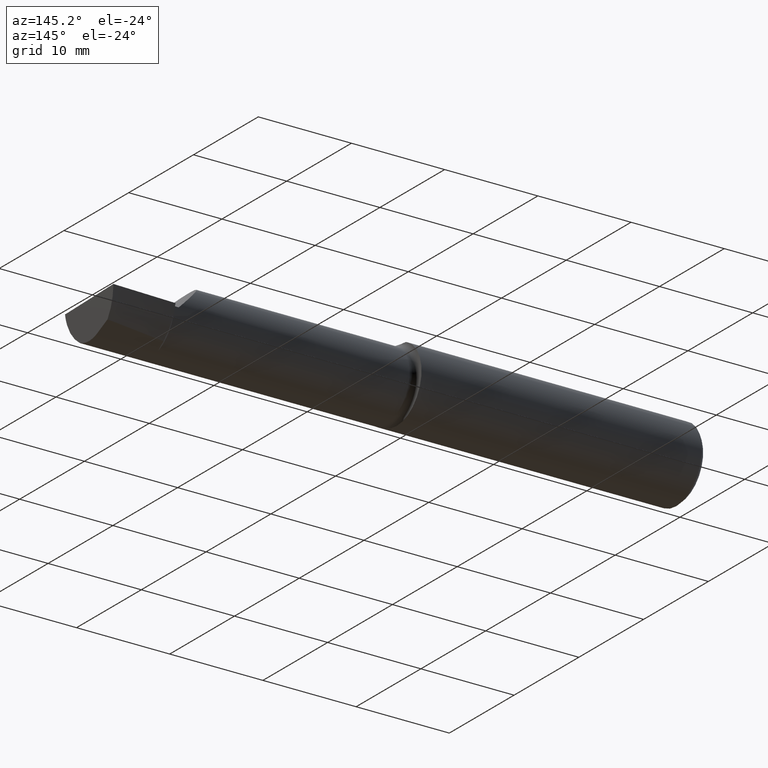
[diagram: clean part render]
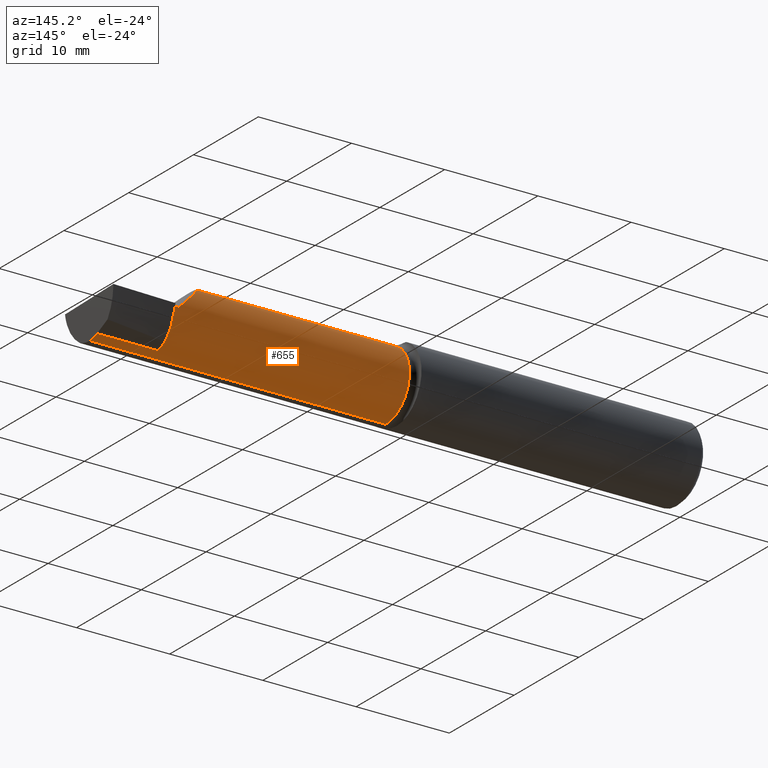
[diagram: same view with one face highlighted and labeled with its STEP entity id]
A machine part, auxiliary view. The second image highlights one B-rep face of the part: STEP entity #655.
In plain terms, the highlighted cylindrical surface (partial cylindrical patch) has radius 3.6551 mm, axis along (-1, -0, -0).
Its self-contained STEP definition (entity closure, byte-faithful):
#9 = CIRCLE ( 'NONE', #172, 0.1439000000000000001 ) ;
#21 = LINE ( 'NONE', #418, #461 ) ;
#22 = AXIS2_PLACEMENT_3D ( 'NONE', #25, #34, #599 ) ;
#25 = CARTESIAN_POINT ( 'NONE',  ( 0.000000000000000000, -0.02500000000000000486, 0.000000000000000000 ) ) ;
#34 = DIRECTION ( 'NONE',  ( -1.000000000000000000, -0.000000000000000000, -0.000000000000000000 ) ) ;
#68 = CARTESIAN_POINT ( 'NONE',  ( 2.476130359589496788, -0.02499999999999999098, -0.1439000000000000556 ) ) ;
#80 = DIRECTION ( 'NONE',  ( -1.000000000000000000, 0.000000000000000000, 0.000000000000000000 ) ) ;
#112 = EDGE_CURVE ( 'NONE', #188, #493, #699, .T. ) ;
#142 = EDGE_CURVE ( 'NONE', #388, #282, #258, .T. ) ;
#157 = VECTOR ( 'NONE', #479, 39.37007874015748143 ) ;
#168 =( BOUNDED_CURVE ( )  B_SPLINE_CURVE ( 3, ( #555, #398, #175, #612 ),
 .UNSPECIFIED., .F., .T. ) 
 B_SPLINE_CURVE_WITH_KNOTS ( ( 4, 4 ),
 ( 0.2749416817183363282, 0.6240075321171965061 ),
 .UNSPECIFIED. ) 
 CURVE ( )  GEOMETRIC_REPRESENTATION_ITEM ( )  RATIONAL_B_SPLINE_CURVE ( ( 1.000000000000000000, 0.9898718353414723836, 0.9898718353414723836, 1.000000000000000000 ) ) 
 REPRESENTATION_ITEM ( '' )  );
#170 = VERTEX_POINT ( 'NONE', #442 ) ;
#172 = AXIS2_PLACEMENT_3D ( 'NONE', #365, #466, #477 ) ;
#175 = CARTESIAN_POINT ( 'NONE',  ( 2.477647009804057276, 0.008402520951239019972, -0.1409776580835795379 ) ) ;
#184 = ORIENTED_EDGE ( 'NONE', *, *, #480, .F. ) ;
#188 = VERTEX_POINT ( 'NONE', #283 ) ;
#204 = CYLINDRICAL_SURFACE ( 'NONE', #22, 0.1439000000000000556 ) ;
#206 = DIRECTION ( 'NONE',  ( -1.000000000000000000, -0.000000000000000000, -0.000000000000000000 ) ) ;
#238 = EDGE_LOOP ( 'NONE', ( #591, #309, #184, #507, #340, #665, #372, #400 ) ) ;
#257 = CARTESIAN_POINT ( 'NONE',  ( 2.500000000000000000, 0.02421669862456291358, -0.1352217681310924902 ) ) ;
#258 = LINE ( 'NONE', #483, #157 ) ;
#265 = VECTOR ( 'NONE', #645, 39.37007874015748143 ) ;
#271 = CARTESIAN_POINT ( 'NONE',  ( 2.199999999999999289, 0.1189000000000000612, 3.826894855694925850E-18 ) ) ;
#274 = EDGE_CURVE ( 'NONE', #613, #517, #168, .T. ) ;
#282 = VERTEX_POINT ( 'NONE', #344 ) ;
#283 = CARTESIAN_POINT ( 'NONE',  ( 2.056100000000000705, -0.02500000000000000486, 0.1439000000000000556 ) ) ;
#303 = CARTESIAN_POINT ( 'NONE',  ( 2.199999999999999289, 0.1189000000000000612, 3.826894855694925850E-18 ) ) ;
#309 = ORIENTED_EDGE ( 'NONE', *, *, #610, .T. ) ;
#310 =( BOUNDED_CURVE ( )  B_SPLINE_CURVE ( 3, ( #319, #592, #433, #271 ),
 .UNSPECIFIED., .F., .F. ) 
 B_SPLINE_CURVE_WITH_KNOTS ( ( 4, 4 ),
 ( 0.000000000000000000, 1.570796326794898112 ),
 .UNSPECIFIED. ) 
 CURVE ( )  GEOMETRIC_REPRESENTATION_ITEM ( )  RATIONAL_B_SPLINE_CURVE ( ( 1.000000000000000000, 0.8047378541243646044, 0.8047378541243646044, 1.000000000000000000 ) ) 
 REPRESENTATION_ITEM ( '' )  );
#319 = CARTESIAN_POINT ( 'NONE',  ( 2.056100000000000705, -0.02500000000000000486, 0.1439000000000000556 ) ) ;
#340 = ORIENTED_EDGE ( 'NONE', *, *, #653, .T. ) ;
#344 = CARTESIAN_POINT ( 'NONE',  ( 2.219999999999999751, 0.1189000000000001306, 3.826894855694927391E-18 ) ) ;
#358 = CIRCLE ( 'NONE', #408, 0.1439000000000001389 ) ;
#365 = CARTESIAN_POINT ( 'NONE',  ( 1.225000000000000089, -0.02500000000000000486, 0.000000000000000000 ) ) ;
#372 = ORIENTED_EDGE ( 'NONE', *, *, #435, .T. ) ;
#388 = VERTEX_POINT ( 'NONE', #303 ) ;
#398 = CARTESIAN_POINT ( 'NONE',  ( 2.476713598110543035, -0.008170903630063761774, -0.1439000000000000834 ) ) ;
#400 = ORIENTED_EDGE ( 'NONE', *, *, #454, .F. ) ;
#408 = AXIS2_PLACEMENT_3D ( 'NONE', #698, #206, #635 ) ;
#418 = CARTESIAN_POINT ( 'NONE',  ( 0.000000000000000000, -0.02499999999999999098, -0.1439000000000000556 ) ) ;
#431 = LINE ( 'NONE', #257, #616 ) ;
#433 = CARTESIAN_POINT ( 'NONE',  ( 2.115705331625488572, 0.1189000000000002139, 0.08429466837451156380 ) ) ;
#435 = EDGE_CURVE ( 'NONE', #282, #170, #358, .T. ) ;
#442 = CARTESIAN_POINT ( 'NONE',  ( 2.219999999999999751, 0.02421669862456293787, -0.1352217681310926567 ) ) ;
#454 = EDGE_CURVE ( 'NONE', #517, #170, #431, .T. ) ;
#459 = CARTESIAN_POINT ( 'NONE',  ( 2.478902233428061930, 0.02421669862456291358, -0.1352217681310924902 ) ) ;
#461 = VECTOR ( 'NONE', #574, 39.37007874015748143 ) ;
#466 = DIRECTION ( 'NONE',  ( -1.000000000000000000, -0.000000000000000000, -0.000000000000000000 ) ) ;
#477 = DIRECTION ( 'NONE',  ( 0.000000000000000000, 0.000000000000000000, 1.000000000000000000 ) ) ;
#479 = DIRECTION ( 'NONE',  ( 1.000000000000000000, 0.000000000000000000, 0.000000000000000000 ) ) ;
#480 = EDGE_CURVE ( 'NONE', #493, #603, #9, .T. ) ;
#483 = CARTESIAN_POINT ( 'NONE',  ( 0.000000000000000000, 0.1189000000000000612, 3.826894855694925850E-18 ) ) ;
#493 = VERTEX_POINT ( 'NONE', #694 ) ;
#507 = ORIENTED_EDGE ( 'NONE', *, *, #112, .F. ) ;
#517 = VERTEX_POINT ( 'NONE', #459 ) ;
#533 = CARTESIAN_POINT ( 'NONE',  ( 0.000000000000000000, -0.02500000000000000486, 0.1439000000000000556 ) ) ;
#555 = CARTESIAN_POINT ( 'NONE',  ( 2.476130359589496788, -0.02499999999999999098, -0.1439000000000000556 ) ) ;
#574 = DIRECTION ( 'NONE',  ( -1.000000000000000000, -0.000000000000000000, -0.000000000000000000 ) ) ;
#591 = ORIENTED_EDGE ( 'NONE', *, *, #274, .F. ) ;
#592 = CARTESIAN_POINT ( 'NONE',  ( 2.056100000000000705, 0.05929466837451177752, 0.1439000000000001112 ) ) ;
#599 = DIRECTION ( 'NONE',  ( 0.000000000000000000, 0.000000000000000000, 1.000000000000000000 ) ) ;
#603 = VERTEX_POINT ( 'NONE', #689 ) ;
#610 = EDGE_CURVE ( 'NONE', #613, #603, #21, .T. ) ;
#612 = CARTESIAN_POINT ( 'NONE',  ( 2.478902233428061930, 0.02421669862456291358, -0.1352217681310924902 ) ) ;
#613 = VERTEX_POINT ( 'NONE', #68 ) ;
#616 = VECTOR ( 'NONE', #80, 39.37007874015748143 ) ;
#635 = DIRECTION ( 'NONE',  ( 0.000000000000000000, 0.000000000000000000, 1.000000000000000000 ) ) ;
#645 = DIRECTION ( 'NONE',  ( -1.000000000000000000, -0.000000000000000000, -0.000000000000000000 ) ) ;
#653 = EDGE_CURVE ( 'NONE', #188, #388, #310, .T. ) ;
#655 = ADVANCED_FACE ( 'NONE', ( #697 ), #204, .T. ) ;
#665 = ORIENTED_EDGE ( 'NONE', *, *, #142, .T. ) ;
#689 = CARTESIAN_POINT ( 'NONE',  ( 1.225000000000000089, -0.02499999999999999098, -0.1439000000000000001 ) ) ;
#694 = CARTESIAN_POINT ( 'NONE',  ( 1.225000000000000089, -0.02500000000000000486, 0.1439000000000000001 ) ) ;
#697 = FACE_OUTER_BOUND ( 'NONE', #238, .T. ) ;
#698 = CARTESIAN_POINT ( 'NONE',  ( 2.219999999999999751, -0.02500000000000000486, 0.000000000000000000 ) ) ;
#699 = LINE ( 'NONE', #533, #265 ) ;